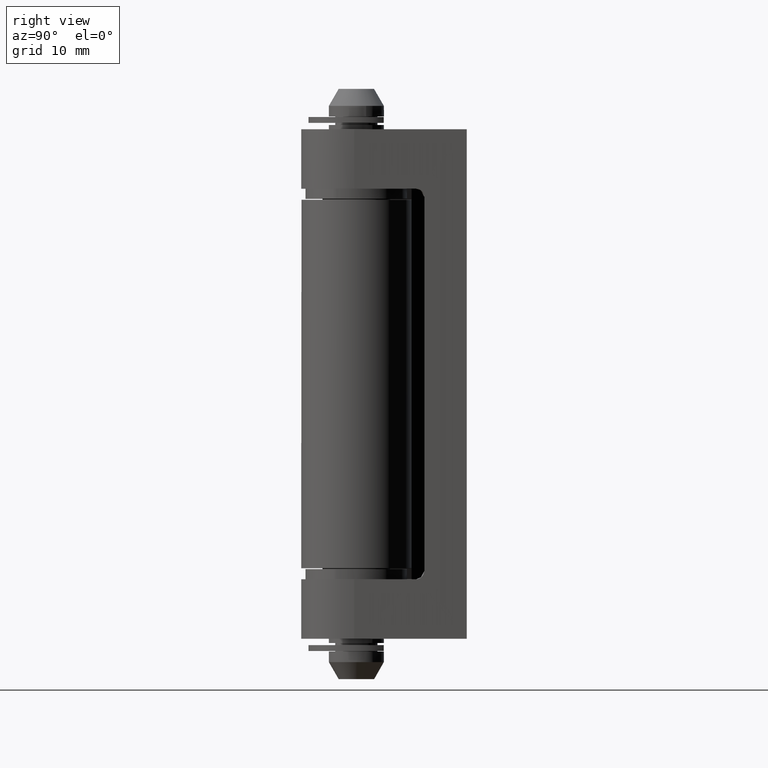
[diagram: clean part render]
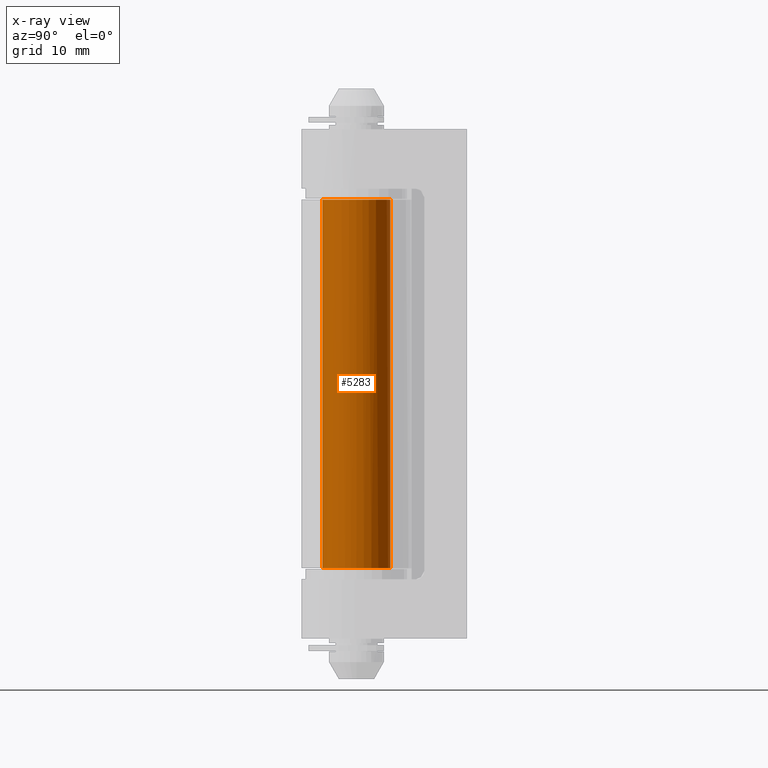
[diagram: x-ray — body ghosted, one internal face saturated and labeled with its STEP entity id]
A machine part, right view, then the same camera in x-ray: the body is ghosted and one INTERNAL B-rep face — a face not visible from any outside direction — is saturated and labeled: STEP entity #5283.
In plain terms, the highlighted face is a freeform B-spline surface patch.
Its self-contained STEP definition (entity closure, byte-faithful):
#5118=CARTESIAN_POINT('',(-0.496540875890463,-3.969064855294956,8.300000394230404));
#5119=VERTEX_POINT('',#5118);
#5133=CARTESIAN_POINT('',(0.034877274623691,3.999847692255430,8.300000394230398));
#5134=VERTEX_POINT('',#5133);
#5150=CARTESIAN_POINT('',(0.034877274638485,3.999847692255301,51.700002455616698));
#5151=VERTEX_POINT('',#5150);
#5152=CARTESIAN_POINT('',(0.034877274638485,3.999847692255301,51.700002455616698));
#5153=CARTESIAN_POINT('',(0.034877274623691,3.999847692255430,8.300000394230398));
#5154=QUASI_UNIFORM_CURVE('',1,(#5152,#5153),.UNSPECIFIED.,.F.,.U.);
#5155=EDGE_CURVE('',#5151,#5134,#5154,.T.);
#5174=CARTESIAN_POINT('',(-0.496535060545280,-3.969065582759606,51.700002455616698));
#5175=VERTEX_POINT('',#5174);
#5189=CARTESIAN_POINT('',(-0.496535060545280,-3.969065582759606,51.700002455616698));
#5190=CARTESIAN_POINT('',(-0.496540875890463,-3.969064855294956,8.300000394230404));
#5191=QUASI_UNIFORM_CURVE('',1,(#5189,#5190),.UNSPECIFIED.,.F.,.U.);
#5192=EDGE_CURVE('',#5175,#5119,#5191,.T.);
#5197=CARTESIAN_POINT('',(0.034877274479889,3.999847692256684,52.785002507151361));
#5198=CARTESIAN_POINT('',(4.034724966736572,3.964941550263188,52.785002507151354));
#5199=CARTESIAN_POINT('',(3.999818824743078,-0.034906141993496,52.785002507151361));
#5200=CARTESIAN_POINT('',(3.964912682749582,-4.034753834250179,52.785002507151354));
#5201=CARTESIAN_POINT('',(-0.034935009507102,-3.999847692256684,52.785002507151361));
#5202=CARTESIAN_POINT('',(-0.266629503346301,-3.997825725041103,52.785002507151354));
#5203=CARTESIAN_POINT('',(-0.496540875832923,-3.969064855302155,52.785002507151361));
#5204=CARTESIAN_POINT('',(0.034877274479889,3.999847692256684,7.187875341407377));
#5205=CARTESIAN_POINT('',(4.034724966736572,3.964941550263188,7.187875341407377));
#5206=CARTESIAN_POINT('',(3.999818824743078,-0.034906141993496,7.187875341407377));
#5207=CARTESIAN_POINT('',(3.964912682749582,-4.034753834250179,7.187875341407377));
#5208=CARTESIAN_POINT('',(-0.034935009507102,-3.999847692256684,7.187875341407377));
#5209=CARTESIAN_POINT('',(-0.266629503346301,-3.997825725041103,7.187875341407377));
#5210=CARTESIAN_POINT('',(-0.496540875832923,-3.969064855302155,7.187875341407377));
#5218=(BOUNDED_SURFACE()B_SPLINE_SURFACE(2,1,((#5197,#5204),(#5198,#5205),(#5199,#5206),(#5200,#5207),(#5201,#5208),(#5202,#5209),(#5203,#5210)),.UNSPECIFIED.,.F.,.F.,.U.)B_SPLINE_SURFACE_WITH_KNOTS((3,2,2,3),(2,2),(0.0,6.627416997969519,13.254833995939039,13.785027355776601),(0.0,45.597127165743991),.UNSPECIFIED.)GEOMETRIC_REPRESENTATION_ITEM()RATIONAL_B_SPLINE_SURFACE(((1.0,1.0),(0.707106781186548,0.707106781186548),(1.0,1.0),(0.707106781186548,0.707106781186548),(1.0,1.0),(0.976568542494924,0.976568542494924),(0.956886118190660,0.956886118190660)))REPRESENTATION_ITEM('')SURFACE());
#5219=CARTESIAN_POINT('',(3.999971132486394,0.0,8.300000394230400));
#5220=VERTEX_POINT('',#5219);
#5221=CARTESIAN_POINT('',(-0.496540875890463,-3.969064855294956,8.300000394230404));
#5222=CARTESIAN_POINT('',(-0.249248577705796,-4.000000000000000,8.300000394230402));
#5223=CARTESIAN_POINT('',(-0.000028867513606,-4.0,8.300000394230400));
#5224=CARTESIAN_POINT('',(3.999971132486393,-4.000000000000000,8.300000394230400));
#5225=CARTESIAN_POINT('',(3.999971132486394,0.0,8.300000394230400));
#5233=(BOUNDED_CURVE()B_SPLINE_CURVE(2,(#5221,#5222,#5223,#5224,#5225),.UNSPECIFIED.,.F.,.U.)B_SPLINE_CURVE_WITH_KNOTS((3,2,3),(0.228526071024409,0.250000000000000,0.500000000000000),.UNSPECIFIED.)CURVE()GEOMETRIC_REPRESENTATION_ITEM()RATIONAL_B_SPLINE_CURVE((0.954005430265230,0.974841727287071,1.0,0.707106781186548,1.0))REPRESENTATION_ITEM(''));
#5234=EDGE_CURVE('',#5119,#5220,#5233,.T.);
#5235=ORIENTED_EDGE('',*,*,#5234,.F.);
#5236=ORIENTED_EDGE('',*,*,#5192,.F.);
#5237=CARTESIAN_POINT('',(3.999971132486394,0.0,51.700002455616698));
#5238=VERTEX_POINT('',#5237);
#5239=CARTESIAN_POINT('',(3.999971132486394,0.0,51.700002455616698));
#5240=CARTESIAN_POINT('',(3.999971132486393,-4.000000000000000,51.700002455616698));
#5241=CARTESIAN_POINT('',(-0.000028867513606,-4.0,51.700002455616698));
#5242=CARTESIAN_POINT('',(-0.249245635966906,-4.0,51.700002455616705));
#5243=CARTESIAN_POINT('',(-0.496535060545280,-3.969065582759606,51.700002455616698));
#5251=(BOUNDED_CURVE()B_SPLINE_CURVE(2,(#5239,#5240,#5241,#5242,#5243),.UNSPECIFIED.,.F.,.U.)B_SPLINE_CURVE_WITH_KNOTS((3,2,3),(0.0,0.250000000000000,0.271473681878583),.UNSPECIFIED.)CURVE()GEOMETRIC_REPRESENTATION_ITEM()RATIONAL_B_SPLINE_CURVE((1.0,0.707106781186548,1.0,0.974842016779223,0.954005909785564))REPRESENTATION_ITEM(''));
#5252=EDGE_CURVE('',#5238,#5175,#5251,.T.);
#5253=ORIENTED_EDGE('',*,*,#5252,.F.);
#5254=CARTESIAN_POINT('',(0.034877274638485,3.999847692255300,51.700002455616698));
#5255=CARTESIAN_POINT('',(3.999971132486394,3.965244842065454,51.700002455616698));
#5256=CARTESIAN_POINT('',(3.999971132486394,0.0,51.700002455616698));
#5264=(BOUNDED_CURVE()B_SPLINE_CURVE(2,(#5254,#5255,#5256),.UNSPECIFIED.,.F.,.U.)B_SPLINE_CURVE_WITH_KNOTS((3,3),(0.751539894348955,1.0),.UNSPECIFIED.)CURVE()GEOMETRIC_REPRESENTATION_ITEM()RATIONAL_B_SPLINE_CURVE((0.996414028068079,0.708910879636540,1.0))REPRESENTATION_ITEM(''));
#5265=EDGE_CURVE('',#5151,#5238,#5264,.T.);
#5266=ORIENTED_EDGE('',*,*,#5265,.F.);
#5267=ORIENTED_EDGE('',*,*,#5155,.T.);
#5268=CARTESIAN_POINT('',(3.999971132486394,0.0,8.300000394230400));
#5269=CARTESIAN_POINT('',(3.999971132486394,3.965244842094803,8.300000394230400));
#5270=CARTESIAN_POINT('',(0.034877274623691,3.999847692255429,8.300000394230398));
#5278=(BOUNDED_CURVE()B_SPLINE_CURVE(2,(#5268,#5269,#5270),.UNSPECIFIED.,.F.,.U.)B_SPLINE_CURVE_WITH_KNOTS((3,3),(0.500000000000000,0.748460105652348),.UNSPECIFIED.)CURVE()GEOMETRIC_REPRESENTATION_ITEM()RATIONAL_B_SPLINE_CURVE((1.0,0.708910879635013,0.996414028071096))REPRESENTATION_ITEM(''));
#5279=EDGE_CURVE('',#5220,#5134,#5278,.T.);
#5280=ORIENTED_EDGE('',*,*,#5279,.F.);
#5281=EDGE_LOOP('',(#5235,#5236,#5253,#5266,#5267,#5280));
#5282=FACE_OUTER_BOUND('',#5281,.T.);
#5283=ADVANCED_FACE('',(#5282),#5218,.F.);